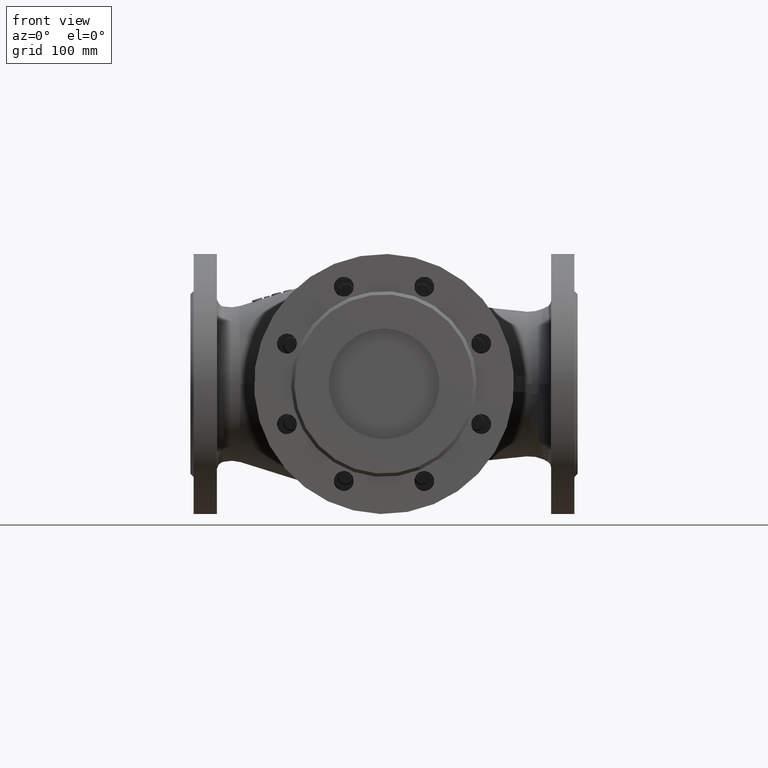
[diagram: clean part render]
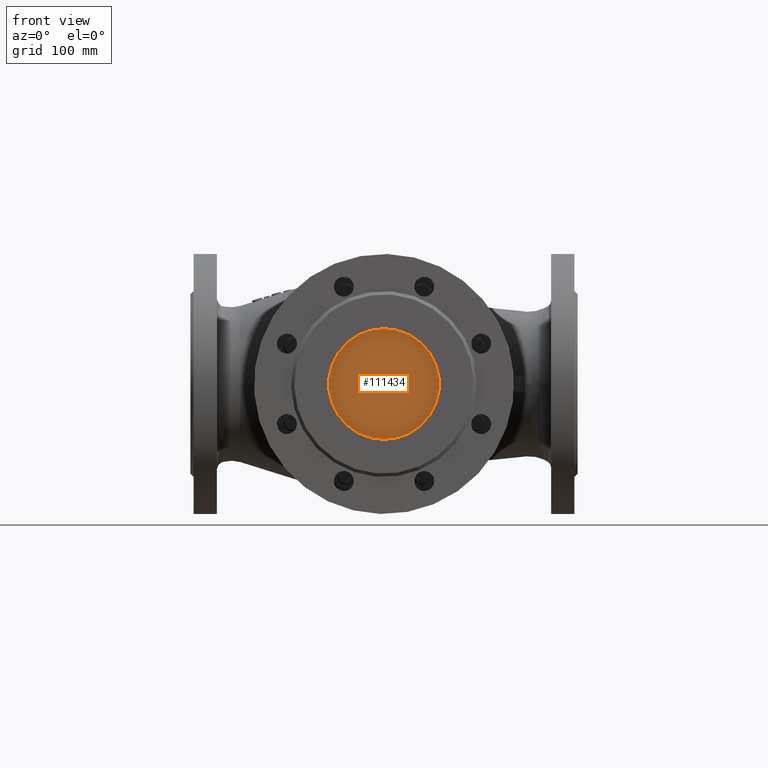
[diagram: same view with one face highlighted and labeled with its STEP entity id]
A machine part, front view. The second image highlights one B-rep face of the part: STEP entity #111434.
In plain terms, the highlighted planar face has unit normal (0, -1, -0).
Its self-contained STEP definition (entity closure, byte-faithful):
#37845 = CIRCLE ( 'NONE', #134378, 50.00000000000000000 ) ;
#41334 = DIRECTION ( 'NONE',  ( 8.817190284068855300E-017, -1.000000000000000000, -1.677873999336674600E-016 ) ) ;
#72213 = DIRECTION ( 'NONE',  ( 8.817190284068855300E-017, -1.000000000000000000, -1.677873999336674600E-016 ) ) ;
#72762 = FACE_OUTER_BOUND ( 'NONE', #85042, .T. ) ;
#75186 = CARTESIAN_POINT ( 'NONE',  ( 1.807524008234115500E-014, -205.0000000000000300, -3.439641698640183500E-014 ) ) ;
#82555 = AXIS2_PLACEMENT_3D ( 'NONE', #75186, #171699, #89047 ) ;
#85042 = EDGE_LOOP ( 'NONE', ( #156758, #117888 ) ) ;
#86733 = AXIS2_PLACEMENT_3D ( 'NONE', #154873, #72213, #168749 ) ;
#87871 = CARTESIAN_POINT ( 'NONE',  ( 1.807524008234115500E-014, -205.0000000000000300, -50.00000000000003600 ) ) ;
#89047 = DIRECTION ( 'NONE',  ( 0.0000000000000000000, 0.0000000000000000000, -1.000000000000000000 ) ) ;
#93404 = VERTEX_POINT ( 'NONE', #87871 ) ;
#105708 = VERTEX_POINT ( 'NONE', #164687 ) ;
#111434 = ADVANCED_FACE ( 'NONE', ( #72762 ), #127131, .T. ) ;
#117888 = ORIENTED_EDGE ( 'NONE', *, *, #124377, .T. ) ;
#123983 = CARTESIAN_POINT ( 'NONE',  ( 1.807524008234115500E-014, -205.0000000000000300, -3.439641698640183500E-014 ) ) ;
#124103 = CIRCLE ( 'NONE', #82555, 50.00000000000000000 ) ;
#124377 = EDGE_CURVE ( 'NONE', #105708, #93404, #37845, .T. ) ;
#127131 = PLANE ( 'NONE',  #86733 ) ;
#134378 = AXIS2_PLACEMENT_3D ( 'NONE', #123983, #41334, #137837 ) ;
#137591 = EDGE_CURVE ( 'NONE', #93404, #105708, #124103, .T. ) ;
#137837 = DIRECTION ( 'NONE',  ( 0.0000000000000000000, 0.0000000000000000000, -1.000000000000000000 ) ) ;
#154873 = CARTESIAN_POINT ( 'NONE',  ( 1.807524008234115500E-014, -205.0000000000000300, -3.439641698640183500E-014 ) ) ;
#156758 = ORIENTED_EDGE ( 'NONE', *, *, #137591, .T. ) ;
#164687 = CARTESIAN_POINT ( 'NONE',  ( 2.463933359228136500E-014, -205.0000000000000300, 49.99999999999997200 ) ) ;
#168749 = DIRECTION ( 'NONE',  ( 0.0000000000000000000, 1.677873999336674600E-016, -1.000000000000000000 ) ) ;
#171699 = DIRECTION ( 'NONE',  ( 8.817190284068855300E-017, -1.000000000000000000, -1.677873999336674600E-016 ) ) ;